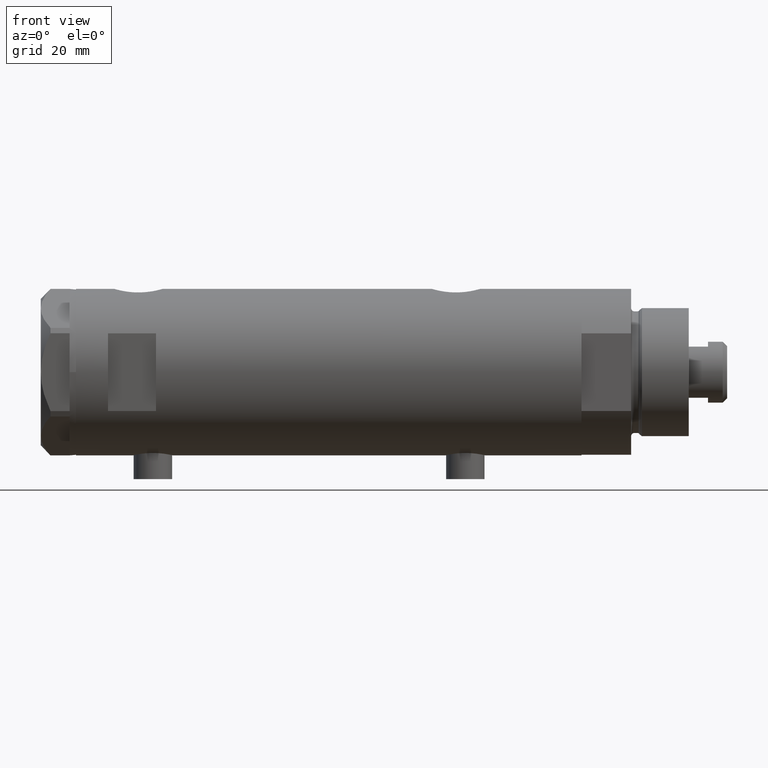
[diagram: clean part render]
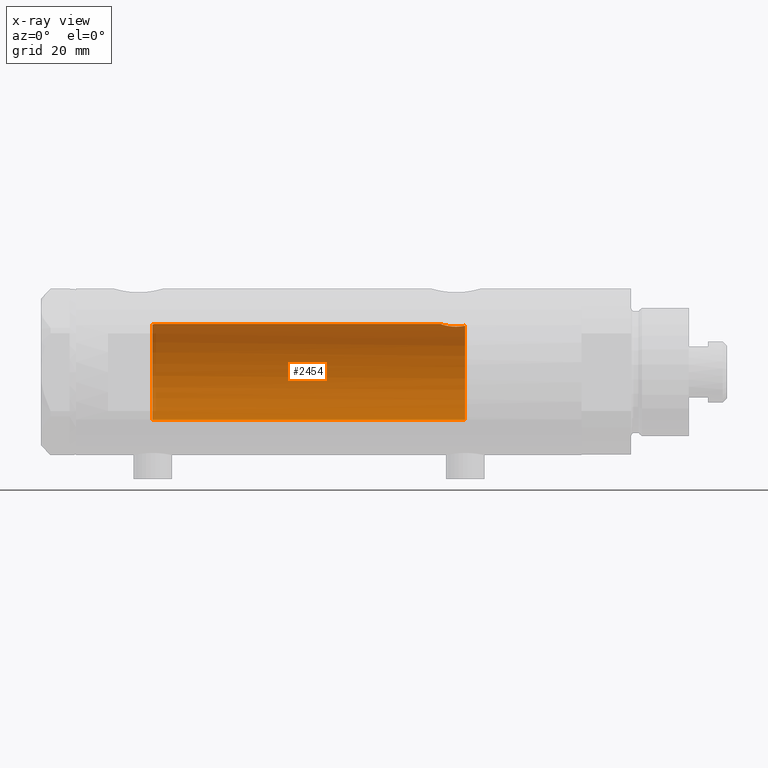
[diagram: x-ray — body ghosted, one internal face saturated and labeled with its STEP entity id]
A machine part, front view, then the same camera in x-ray: the body is ghosted and one INTERNAL B-rep face — a face not visible from any outside direction — is saturated and labeled: STEP entity #2454.
In plain terms, the highlighted cylindrical surface (partial cylindrical patch) has radius 15 mm, axis along (1, 0, -0).
Its self-contained STEP definition (entity closure, byte-faithful):
#63 = CARTESIAN_POINT ( 'NONE',  ( 15.00000000000000000, 5.959273468635536151E-16, -34.88499999999999801 ) ) ;
#94 = CARTESIAN_POINT ( 'NONE',  ( 0.000000000000000000, 0.000000000000000000, 78.95000000000000284 ) ) ;
#193 = CARTESIAN_POINT ( 'NONE',  ( 14.85285765243877698, 2.103108122960815507, 55.05873200114292842 ) ) ;
#241 = VERTEX_POINT ( 'NONE', #3854 ) ;
#280 = VERTEX_POINT ( 'NONE', #63 ) ;
#329 = CARTESIAN_POINT ( 'NONE',  ( 14.96070684509191295, 1.105917936056761253, -35.00719211967314237 ) ) ;
#434 = DIRECTION ( 'NONE',  ( -1.000000000000000000, 0.000000000000000000, 0.000000000000000000 ) ) ;
#455 = CARTESIAN_POINT ( 'NONE',  ( 14.30778609824508152, 4.504821240468950272, -37.89964104205774476 ) ) ;
#482 = CARTESIAN_POINT ( 'NONE',  ( 14.19413554982521219, 4.851369549374611623, -39.17746179061393264 ) ) ;
#504 = CARTESIAN_POINT ( 'NONE',  ( 14.19789541567450364, 4.839422427565552631, -40.29531557750247117 ) ) ;
#745 = DIRECTION ( 'NONE',  ( 1.000000000000000000, 0.000000000000000000, 0.000000000000000000 ) ) ;
#795 = CARTESIAN_POINT ( 'NONE',  ( 14.49939476291675078, 3.855488469592460277, -36.74998822577914837 ) ) ;
#883 = CARTESIAN_POINT ( 'NONE',  ( 14.90012193493785198, 1.740148100968098577, -35.20148967824482611 ) ) ;
#957 = LINE ( 'NONE', #4609, #4391 ) ;
#989 = CIRCLE ( 'NONE', #1921, 15.00000000000000000 ) ;
#1056 = ORIENTED_EDGE ( 'NONE', *, *, #1845, .T. ) ;
#1123 = CARTESIAN_POINT ( 'NONE',  ( 0.000000000000000000, 0.000000000000000000, 55.15000000000000568 ) ) ;
#1175 = CARTESIAN_POINT ( 'NONE',  ( 14.25831405531604545, 4.659025730769700502, -41.16798855846089822 ) ) ;
#1228 = CARTESIAN_POINT ( 'NONE',  ( 14.87714698525761214, 1.924825815456623568, 54.97761219789977361 ) ) ;
#1303 = DIRECTION ( 'NONE',  ( -1.000000000000000000, 0.000000000000000000, 0.000000000000000000 ) ) ;
#1437 = CARTESIAN_POINT ( 'NONE',  ( 14.99999999999999822, 0.2215872191885691345, -34.88500000000000512 ) ) ;
#1439 = VERTEX_POINT ( 'NONE', #4532 ) ;
#1574 = DIRECTION ( 'NONE',  ( -0.000000000000000000, -0.000000000000000000, -1.000000000000000000 ) ) ;
#1593 = CARTESIAN_POINT ( 'NONE',  ( 14.84719462287499958, 2.145357993387301043, -35.37798666051606489 ) ) ;
#1619 = CARTESIAN_POINT ( 'NONE',  ( 14.23822651595894584, 4.719656459720482644, -40.95110225956646843 ) ) ;
#1663 = DIRECTION ( 'NONE',  ( 0.000000000000000000, 0.000000000000000000, -1.000000000000000000 ) ) ;
#1668 = LINE ( 'NONE', #1691, #1837 ) ;
#1691 = CARTESIAN_POINT ( 'NONE',  ( -15.00000000000000000, 0.000000000000000000, 78.95000000000000284 ) ) ;
#1790 = CARTESIAN_POINT ( 'NONE',  ( 15.00000000000000000, 5.959273468635536151E-16, -34.88499999999999801 ) ) ;
#1837 = VECTOR ( 'NONE', #1897, 1000.000000000000000 ) ;
#1845 = EDGE_CURVE ( 'NONE', #241, #4335, #1668, .T. ) ;
#1879 = EDGE_CURVE ( 'NONE', #1439, #241, #989, .T. ) ;
#1897 = DIRECTION ( 'NONE',  ( -0.000000000000000000, -0.000000000000000000, -1.000000000000000000 ) ) ;
#1920 = CARTESIAN_POINT ( 'NONE',  ( 14.42780822725581125, 4.105572710089619548, -42.36940228115440732 ) ) ;
#1921 = AXIS2_PLACEMENT_3D ( 'NONE', #1123, #2271, #745 ) ;
#2002 = CARTESIAN_POINT ( 'NONE',  ( 14.92022334814851270, 1.556082286439819828, 54.83634472570267349 ) ) ;
#2271 = DIRECTION ( 'NONE',  ( 0.000000000000000000, 0.000000000000000000, 1.000000000000000000 ) ) ;
#2294 = CARTESIAN_POINT ( 'NONE',  ( 14.72004460873233000, 2.909758128378248987, -35.82614485536702631 ) ) ;
#2314 = CARTESIAN_POINT ( 'NONE',  ( 14.33601656325283180, 4.414747171699214157, -37.69405684818107716 ) ) ;
#2344 = CARTESIAN_POINT ( 'NONE',  ( 14.64710079709035107, 3.249565827911971017, -36.10237283776275063 ) ) ;
#2371 = EDGE_CURVE ( 'NONE', #280, #4696, #4603, .T. ) ;
#2394 = CARTESIAN_POINT ( 'NONE',  ( 14.18274079043653124, 4.883732009304969424, -39.63167541567704433 ) ) ;
#2403 = VERTEX_POINT ( 'NONE', #4571 ) ;
#2413 = CARTESIAN_POINT ( 'NONE',  ( 14.82638779339053947, 2.275571356824483082, 55.15000000000000568 ) ) ;
#2439 = CARTESIAN_POINT ( 'NONE',  ( 14.93895715383719569, 1.365440931094926480, 54.77638192761232716 ) ) ;
#2454 = ADVANCED_FACE ( 'NONE', ( #3510 ), #3139, .F. ) ;
#2500 = ORIENTED_EDGE ( 'NONE', *, *, #1879, .T. ) ;
#2609 = EDGE_LOOP ( 'NONE', ( #4592, #4380, #2500, #1056, #4574, #2770 ) ) ;
#2672 = CARTESIAN_POINT ( 'NONE',  ( 14.30582738521795072, 4.511024637967008033, -41.58517547595721453 ) ) ;
#2731 = CIRCLE ( 'NONE', #3696, 15.00000000000000000 ) ;
#2766 = CARTESIAN_POINT ( 'NONE',  ( 14.92306512695867049, 1.532295990539004116, -35.12730056478244478 ) ) ;
#2770 = ORIENTED_EDGE ( 'NONE', *, *, #2371, .F. ) ;
#2773 = B_SPLINE_CURVE_WITH_KNOTS ( 'NONE', 3,
 ( #2413, #193, #1228, #2002, #2439, #3485, #3919, #3208 ),
 .UNSPECIFIED., .F., .F.,
 ( 4, 2, 2, 4 ),
 ( 0.02826119741494479559, 0.02885214443185066258, 0.02944309144875652956, 0.03062498548256826700 ),
 .UNSPECIFIED. ) ;
#2872 = CARTESIAN_POINT ( 'NONE',  ( 14.46277203719950855, 3.978470183374505975, -42.55000000000000426 ) ) ;
#3063 = CARTESIAN_POINT ( 'NONE',  ( -15.00000000000000000, 0.000000000000000000, -42.55000000000000426 ) ) ;
#3139 = CYLINDRICAL_SURFACE ( 'NONE', #3515, 15.00000000000000000 ) ;
#3160 = CARTESIAN_POINT ( 'NONE',  ( 0.000000000000000000, 0.000000000000000000, -42.55000000000000426 ) ) ;
#3208 = CARTESIAN_POINT ( 'NONE',  ( 15.00000000000000000, 0.000000000000000000, 54.58500000000000085 ) ) ;
#3421 = CARTESIAN_POINT ( 'NONE',  ( 14.81695028448457130, 2.344053258630407033, -35.48122781573722051 ) ) ;
#3429 = EDGE_CURVE ( 'NONE', #1439, #2403, #2773, .T. ) ;
#3445 = CARTESIAN_POINT ( 'NONE',  ( 14.46277203719950855, 3.978470183374505975, -42.55000000000000426 ) ) ;
#3485 = CARTESIAN_POINT ( 'NONE',  ( 14.98404286071220781, 0.7911628595372691697, 54.63357750803344004 ) ) ;
#3493 = CARTESIAN_POINT ( 'NONE',  ( 14.39420242489971535, 4.221147702577646932, -42.17871871185445087 ) ) ;
#3510 = FACE_OUTER_BOUND ( 'NONE', #2609, .T. ) ;
#3515 = AXIS2_PLACEMENT_3D ( 'NONE', #94, #1574, #1303 ) ;
#3696 = AXIS2_PLACEMENT_3D ( 'NONE', #3160, #1663, #434 ) ;
#3809 = CARTESIAN_POINT ( 'NONE',  ( 14.23996709707015818, 4.714409263334266242, -38.52876674044652816 ) ) ;
#3830 = CARTESIAN_POINT ( 'NONE',  ( 14.25987224063200465, 4.654266980155760791, -38.31645838593740905 ) ) ;
#3854 = CARTESIAN_POINT ( 'NONE',  ( -15.00000000000000000, 0.000000000000000000, 55.15000000000000568 ) ) ;
#3919 = CARTESIAN_POINT ( 'NONE',  ( 14.99999999999999822, 0.3998316629799389399, 54.58500000000000085 ) ) ;
#3969 = EDGE_CURVE ( 'NONE', #4335, #4696, #2731, .T. ) ;
#4081 = CARTESIAN_POINT ( 'NONE',  ( 14.97547159671691475, 0.8856171163179413774, -34.96107436056316686 ) ) ;
#4124 = EDGE_CURVE ( 'NONE', #2403, #280, #957, .T. ) ;
#4189 = CARTESIAN_POINT ( 'NONE',  ( 14.42796195111116830, 4.108450791336244023, -37.10736184290816198 ) ) ;
#4210 = CARTESIAN_POINT ( 'NONE',  ( 14.33334483745703203, 4.423389780079196143, -41.78724945987951855 ) ) ;
#4335 = VERTEX_POINT ( 'NONE', #3063 ) ;
#4380 = ORIENTED_EDGE ( 'NONE', *, *, #3429, .F. ) ;
#4391 = VECTOR ( 'NONE', #4711, 1000.000000000000000 ) ;
#4446 = CARTESIAN_POINT ( 'NONE',  ( 14.99509227038106296, 0.4430293709771138122, -34.90006686301529726 ) ) ;
#4532 = CARTESIAN_POINT ( 'NONE',  ( 14.82638779339053947, 2.275571356824483082, 55.15000000000000568 ) ) ;
#4541 = CARTESIAN_POINT ( 'NONE',  ( 14.20808274384303971, 4.809639920165276195, -40.51496246579131366 ) ) ;
#4571 = CARTESIAN_POINT ( 'NONE',  ( 15.00000000000000000, 0.000000000000000000, 54.58500000000000085 ) ) ;
#4574 = ORIENTED_EDGE ( 'NONE', *, *, #3969, .T. ) ;
#4592 = ORIENTED_EDGE ( 'NONE', *, *, #4124, .F. ) ;
#4603 = B_SPLINE_CURVE_WITH_KNOTS ( 'NONE', 3,
 ( #1790, #1437, #4446, #4081, #329, #2766, #883, #1593, #3421, #2294, #2344, #795, #4189, #2314, #455, #3830, #3809, #482, #2394, #504, #4541, #1619, #1175, #2672, #4210, #3493, #1920, #3445 ),
 .UNSPECIFIED., .F., .F.,
 ( 4, 2, 2, 2, 2, 2, 2, 2, 2, 2, 2, 2, 2, 4 ),
 ( 0.01531448496322443745, 0.01597936247866482348, 0.01664423999410521299, 0.01730911750954559902, 0.01797399502498598853, 0.01930375005586676060, 0.02063350508674753614, 0.02129838260218791524, 0.02196326011762829433, 0.02329301514850904906, 0.02395789266394942815, 0.02462277017938980378, 0.02528764769483018288, 0.02595252521027056197 ),
 .UNSPECIFIED. ) ;
#4609 = CARTESIAN_POINT ( 'NONE',  ( 15.00000000000000000, 1.836970198721029589E-15, 78.95000000000000284 ) ) ;
#4696 = VERTEX_POINT ( 'NONE', #2872 ) ;
#4711 = DIRECTION ( 'NONE',  ( -0.000000000000000000, -0.000000000000000000, -1.000000000000000000 ) ) ;